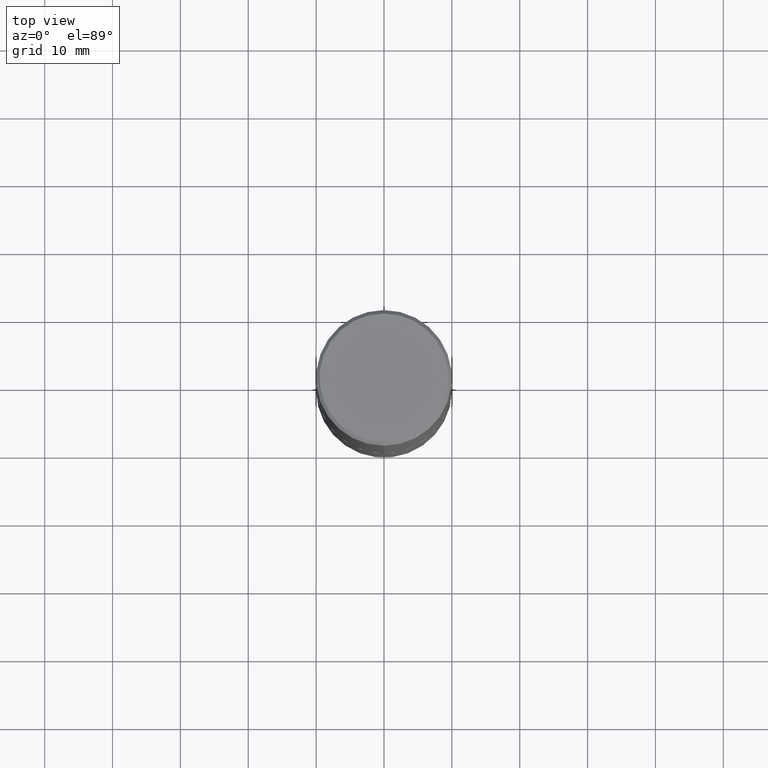
[diagram: clean part render]
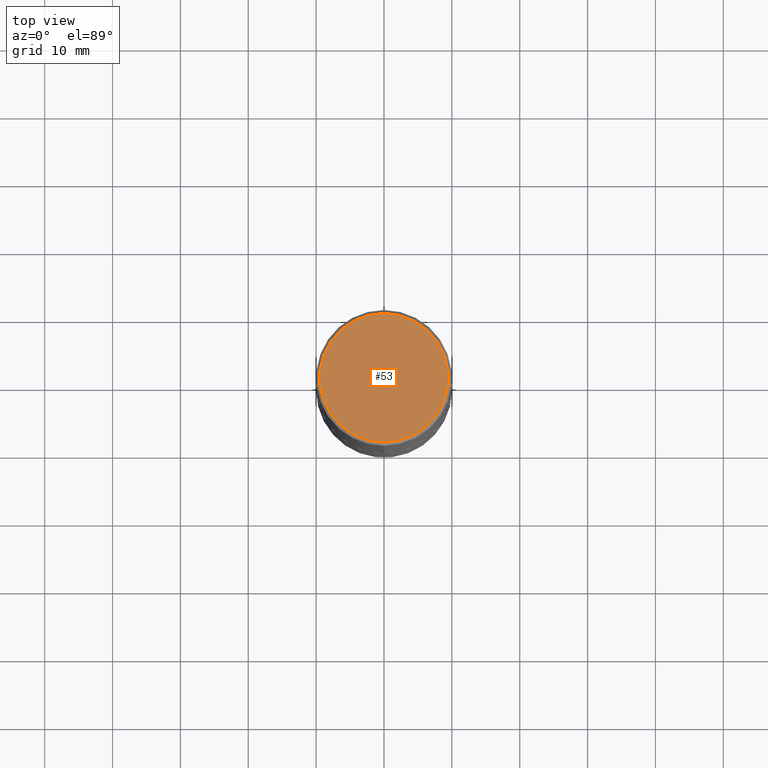
[diagram: same view with one face highlighted and labeled with its STEP entity id]
A machine part, top view. The second image highlights one B-rep face of the part: STEP entity #53.
In plain terms, the highlighted planar face has unit normal (0, -0, -1).
Its self-contained STEP definition (entity closure, byte-faithful):
#1 = DIRECTION ( 'NONE',  ( 6.982962677686265922E-15, 1.000000000000000000, -3.488245283905469982E-15 ) ) ;
#44 = CIRCLE ( 'NONE', #337, 0.3736999999999997546 ) ;
#53 = ADVANCED_FACE ( 'NONE', ( #287 ), #184, .F. ) ;
#102 = AXIS2_PLACEMENT_3D ( 'NONE', #381, #259, #372 ) ;
#139 = EDGE_CURVE ( 'NONE', #191, #225, #44, .T. ) ;
#144 = CARTESIAN_POINT ( 'NONE',  ( -2.632373081744935132E-15, -0.3736999999999997546, 1.613949360642593119E-15 ) ) ;
#184 = PLANE ( 'NONE',  #216 ) ;
#191 = VERTEX_POINT ( 'NONE', #368 ) ;
#216 = AXIS2_PLACEMENT_3D ( 'NONE', #415, #379, #1 ) ;
#219 = ORIENTED_EDGE ( 'NONE', *, *, #139, .T. ) ;
#225 = VERTEX_POINT ( 'NONE', #144 ) ;
#243 = ORIENTED_EDGE ( 'NONE', *, *, #339, .T. ) ;
#251 = EDGE_LOOP ( 'NONE', ( #219, #243 ) ) ;
#259 = DIRECTION ( 'NONE',  ( -2.447728531270410110E-29, 3.488245283905469588E-15, 1.000000000000000000 ) ) ;
#266 = CARTESIAN_POINT ( 'NONE',  ( -7.597555942708192484E-45, 1.082723772174391931E-30, 3.103920980471204642E-16 ) ) ;
#287 = FACE_OUTER_BOUND ( 'NONE', #251, .T. ) ;
#296 = DIRECTION ( 'NONE',  ( -6.982962677686265922E-15, -1.000000000000000000, 3.488245283905469588E-15 ) ) ;
#299 = CIRCLE ( 'NONE', #102, 0.3736999999999997546 ) ;
#337 = AXIS2_PLACEMENT_3D ( 'NONE', #266, #387, #296 ) ;
#339 = EDGE_CURVE ( 'NONE', #225, #191, #299, .T. ) ;
#368 = CARTESIAN_POINT ( 'NONE',  ( 2.679362779428219524E-15, 0.3736999999999997546, -9.931651645483526840E-16 ) ) ;
#372 = DIRECTION ( 'NONE',  ( -6.982962677686265922E-15, -1.000000000000000000, 3.488245283905469588E-15 ) ) ;
#379 = DIRECTION ( 'NONE',  ( 2.447728531270409269E-29, -3.488245283905469982E-15, -1.000000000000000000 ) ) ;
#381 = CARTESIAN_POINT ( 'NONE',  ( -7.597555942708192484E-45, 1.082723772174391931E-30, 3.103920980471204642E-16 ) ) ;
#387 = DIRECTION ( 'NONE',  ( -2.447728531270410110E-29, 3.488245283905469588E-15, 1.000000000000000000 ) ) ;
#415 = CARTESIAN_POINT ( 'NONE',  ( 2.609533152651355831E-15, 0.3736999999999997546, -1.148361213571912842E-15 ) ) ;